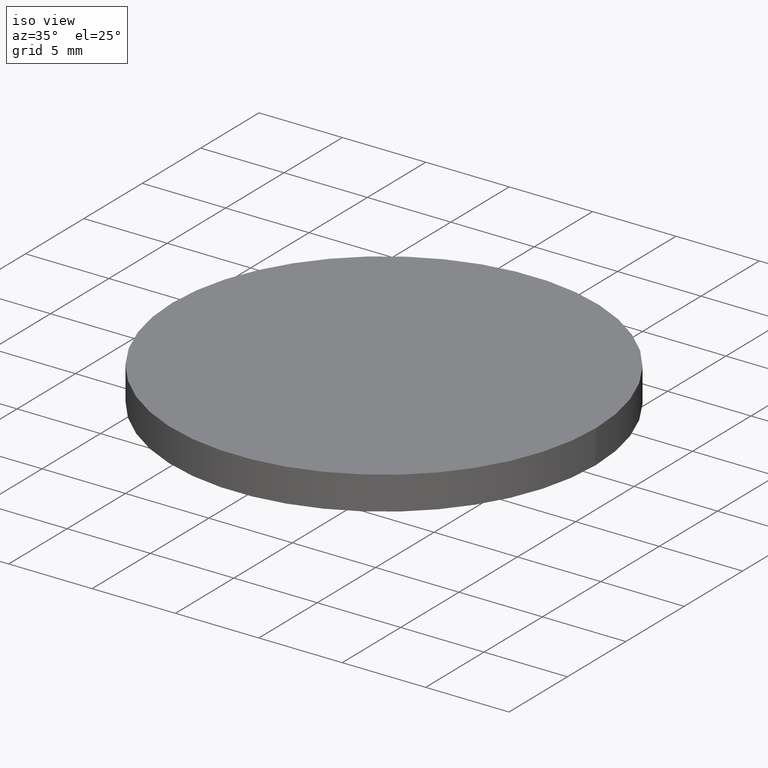
[diagram: clean part render]
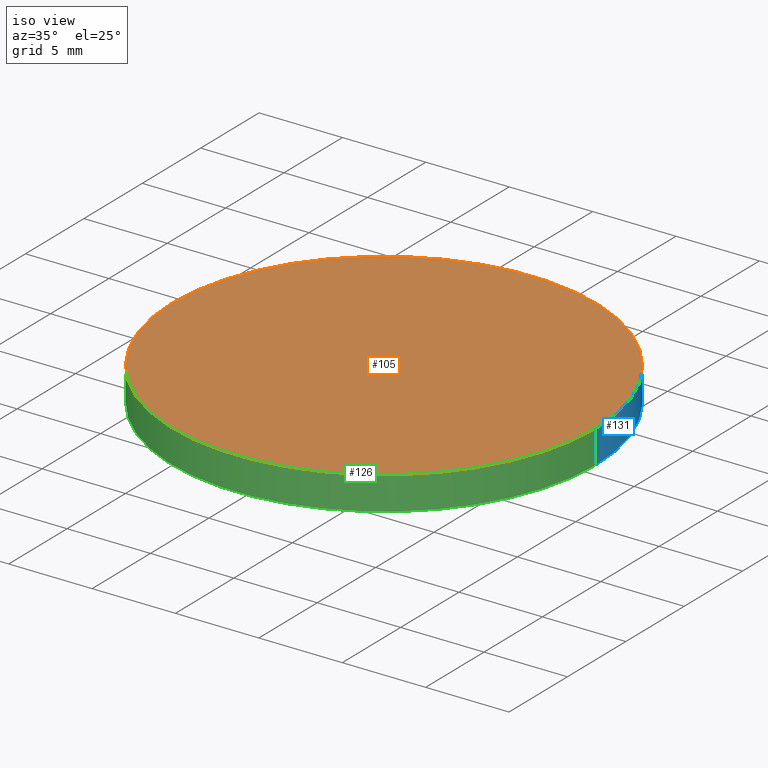
[diagram: same view with three faces highlighted in distinct colors, each labeled with its STEP entity id]
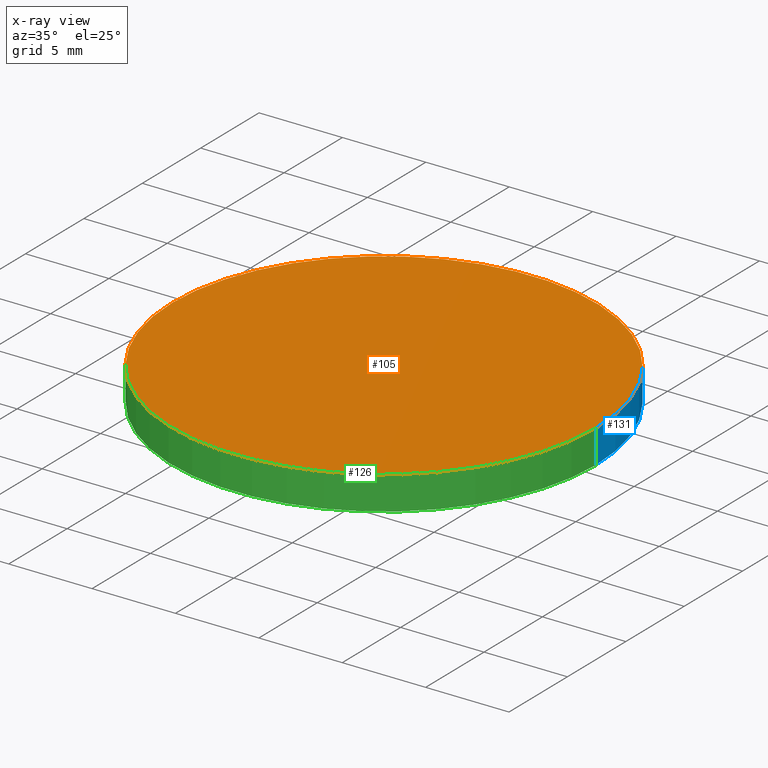
[diagram: x-ray of the same camera — body ghosted, the three highlighted faces saturated]
A machine part, iso view with three faces highlighted in distinct colors.
The next image is the same camera in x-ray (body ghosted, the three faces saturated) — at least one of them is partly hidden behind the body in this view.
Their STEP definitions:

[orange] entity #105 — the highlighted planar face has unit normal (0, 0, 1).
#1 = AXIS2_PLACEMENT_3D ( 'NONE', #58, #69, #83 ) ;
#9 = DIRECTION ( 'NONE',  ( 1.000000000000000000, 0.0000000000000000000, 0.0000000000000000000 ) ) ;
#15 = FACE_OUTER_BOUND ( 'NONE', #76, .T. ) ;
#16 = CARTESIAN_POINT ( 'NONE',  ( 0.0000000000000000000, 0.0000000000000000000, 2.000000000000000000 ) ) ;
#17 = CARTESIAN_POINT ( 'NONE',  ( 12.69999999999999900, 1.555301434917138400E-015, 2.000000000000000000 ) ) ;
#24 = CIRCLE ( 'NONE', #77, 12.69999999999999900 ) ;
#26 = PLANE ( 'NONE',  #1 ) ;
#29 = ORIENTED_EDGE ( 'NONE', *, *, #101, .T. ) ;
#45 = DIRECTION ( 'NONE',  ( 0.0000000000000000000, 0.0000000000000000000, 1.000000000000000000 ) ) ;
#50 = CARTESIAN_POINT ( 'NONE',  ( -12.69999999999999900, 0.0000000000000000000, 2.000000000000000000 ) ) ;
#52 = ORIENTED_EDGE ( 'NONE', *, *, #61, .T. ) ;
#58 = CARTESIAN_POINT ( 'NONE',  ( 0.0000000000000000000, 0.0000000000000000000, 2.000000000000000000 ) ) ;
#61 = EDGE_CURVE ( 'NONE', #80, #66, #104, .T. ) ;
#66 = VERTEX_POINT ( 'NONE', #50 ) ;
#69 = DIRECTION ( 'NONE',  ( 0.0000000000000000000, 0.0000000000000000000, 1.000000000000000000 ) ) ;
#76 = EDGE_LOOP ( 'NONE', ( #29, #52 ) ) ;
#77 = AXIS2_PLACEMENT_3D ( 'NONE', #16, #78, #9 ) ;
#78 = DIRECTION ( 'NONE',  ( 0.0000000000000000000, 0.0000000000000000000, 1.000000000000000000 ) ) ;
#80 = VERTEX_POINT ( 'NONE', #17 ) ;
#83 = DIRECTION ( 'NONE',  ( 1.000000000000000000, 0.0000000000000000000, -0.0000000000000000000 ) ) ;
#92 = AXIS2_PLACEMENT_3D ( 'NONE', #127, #45, #116 ) ;
#101 = EDGE_CURVE ( 'NONE', #66, #80, #24, .T. ) ;
#104 = CIRCLE ( 'NONE', #92, 12.69999999999999900 ) ;
#105 = ADVANCED_FACE ( 'NONE', ( #15 ), #26, .T. ) ;
#116 = DIRECTION ( 'NONE',  ( 1.000000000000000000, 0.0000000000000000000, 0.0000000000000000000 ) ) ;
#127 = CARTESIAN_POINT ( 'NONE',  ( 0.0000000000000000000, 0.0000000000000000000, 2.000000000000000000 ) ) ;

[blue] entity #131 — the highlighted cylindrical surface (partial cylindrical patch) has radius 12.7 mm, axis along (-0, -0, -1).
#7 = ORIENTED_EDGE ( 'NONE', *, *, #51, .T. ) ;
#10 = CARTESIAN_POINT ( 'NONE',  ( -12.69999999999999900, 0.0000000000000000000, 0.0000000000000000000 ) ) ;
#14 = DIRECTION ( 'NONE',  ( -0.0000000000000000000, -0.0000000000000000000, -1.000000000000000000 ) ) ;
#17 = CARTESIAN_POINT ( 'NONE',  ( 12.69999999999999900, 1.555301434917138400E-015, 2.000000000000000000 ) ) ;
#18 = EDGE_CURVE ( 'NONE', #66, #60, #74, .T. ) ;
#19 = DIRECTION ( 'NONE',  ( -1.000000000000000000, 0.0000000000000000000, 0.0000000000000000000 ) ) ;
#23 = VERTEX_POINT ( 'NONE', #70 ) ;
#32 = DIRECTION ( 'NONE',  ( -0.0000000000000000000, -0.0000000000000000000, -1.000000000000000000 ) ) ;
#33 = CYLINDRICAL_SURFACE ( 'NONE', #89, 12.69999999999999900 ) ;
#41 = CIRCLE ( 'NONE', #56, 12.69999999999999900 ) ;
#42 = EDGE_CURVE ( 'NONE', #23, #60, #41, .T. ) ;
#44 = VECTOR ( 'NONE', #32, 1000.000000000000000 ) ;
#45 = DIRECTION ( 'NONE',  ( 0.0000000000000000000, 0.0000000000000000000, 1.000000000000000000 ) ) ;
#50 = CARTESIAN_POINT ( 'NONE',  ( -12.69999999999999900, 0.0000000000000000000, 2.000000000000000000 ) ) ;
#51 = EDGE_CURVE ( 'NONE', #80, #23, #102, .T. ) ;
#54 = ORIENTED_EDGE ( 'NONE', *, *, #18, .F. ) ;
#56 = AXIS2_PLACEMENT_3D ( 'NONE', #137, #59, #128 ) ;
#59 = DIRECTION ( 'NONE',  ( 0.0000000000000000000, 0.0000000000000000000, 1.000000000000000000 ) ) ;
#60 = VERTEX_POINT ( 'NONE', #10 ) ;
#61 = EDGE_CURVE ( 'NONE', #80, #66, #104, .T. ) ;
#66 = VERTEX_POINT ( 'NONE', #50 ) ;
#70 = CARTESIAN_POINT ( 'NONE',  ( 12.69999999999999900, 1.555301434917138400E-015, 0.0000000000000000000 ) ) ;
#74 = LINE ( 'NONE', #97, #44 ) ;
#80 = VERTEX_POINT ( 'NONE', #17 ) ;
#85 = ORIENTED_EDGE ( 'NONE', *, *, #42, .T. ) ;
#89 = AXIS2_PLACEMENT_3D ( 'NONE', #138, #14, #19 ) ;
#92 = AXIS2_PLACEMENT_3D ( 'NONE', #127, #45, #116 ) ;
#96 = DIRECTION ( 'NONE',  ( -0.0000000000000000000, -0.0000000000000000000, -1.000000000000000000 ) ) ;
#97 = CARTESIAN_POINT ( 'NONE',  ( -12.69999999999999900, 0.0000000000000000000, 2.000000000000000000 ) ) ;
#102 = LINE ( 'NONE', #117, #130 ) ;
#104 = CIRCLE ( 'NONE', #92, 12.69999999999999900 ) ;
#110 = EDGE_LOOP ( 'NONE', ( #135, #7, #85, #54 ) ) ;
#115 = FACE_OUTER_BOUND ( 'NONE', #110, .T. ) ;
#116 = DIRECTION ( 'NONE',  ( 1.000000000000000000, 0.0000000000000000000, 0.0000000000000000000 ) ) ;
#117 = CARTESIAN_POINT ( 'NONE',  ( 12.69999999999999900, 1.555301434917138400E-015, 2.000000000000000000 ) ) ;
#127 = CARTESIAN_POINT ( 'NONE',  ( 0.0000000000000000000, 0.0000000000000000000, 2.000000000000000000 ) ) ;
#128 = DIRECTION ( 'NONE',  ( 1.000000000000000000, 0.0000000000000000000, 0.0000000000000000000 ) ) ;
#130 = VECTOR ( 'NONE', #96, 1000.000000000000000 ) ;
#131 = ADVANCED_FACE ( 'NONE', ( #115 ), #33, .T. ) ;
#135 = ORIENTED_EDGE ( 'NONE', *, *, #61, .F. ) ;
#137 = CARTESIAN_POINT ( 'NONE',  ( 0.0000000000000000000, 0.0000000000000000000, 0.0000000000000000000 ) ) ;
#138 = CARTESIAN_POINT ( 'NONE',  ( 0.0000000000000000000, 0.0000000000000000000, 2.000000000000000000 ) ) ;

[green] entity #126 — the highlighted cylindrical surface (partial cylindrical patch) has radius 12.7 mm, axis along (-0, -0, -1).
#9 = DIRECTION ( 'NONE',  ( 1.000000000000000000, 0.0000000000000000000, 0.0000000000000000000 ) ) ;
#10 = CARTESIAN_POINT ( 'NONE',  ( -12.69999999999999900, 0.0000000000000000000, 0.0000000000000000000 ) ) ;
#11 = CARTESIAN_POINT ( 'NONE',  ( 0.0000000000000000000, 0.0000000000000000000, 2.000000000000000000 ) ) ;
#16 = CARTESIAN_POINT ( 'NONE',  ( 0.0000000000000000000, 0.0000000000000000000, 2.000000000000000000 ) ) ;
#17 = CARTESIAN_POINT ( 'NONE',  ( 12.69999999999999900, 1.555301434917138400E-015, 2.000000000000000000 ) ) ;
#18 = EDGE_CURVE ( 'NONE', #66, #60, #74, .T. ) ;
#22 = AXIS2_PLACEMENT_3D ( 'NONE', #11, #120, #129 ) ;
#23 = VERTEX_POINT ( 'NONE', #70 ) ;
#24 = CIRCLE ( 'NONE', #77, 12.69999999999999900 ) ;
#27 = DIRECTION ( 'NONE',  ( 0.0000000000000000000, 0.0000000000000000000, 1.000000000000000000 ) ) ;
#30 = CIRCLE ( 'NONE', #88, 12.69999999999999900 ) ;
#32 = DIRECTION ( 'NONE',  ( -0.0000000000000000000, -0.0000000000000000000, -1.000000000000000000 ) ) ;
#43 = EDGE_CURVE ( 'NONE', #60, #23, #30, .T. ) ;
#44 = VECTOR ( 'NONE', #32, 1000.000000000000000 ) ;
#47 = ORIENTED_EDGE ( 'NONE', *, *, #18, .T. ) ;
#50 = CARTESIAN_POINT ( 'NONE',  ( -12.69999999999999900, 0.0000000000000000000, 2.000000000000000000 ) ) ;
#51 = EDGE_CURVE ( 'NONE', #80, #23, #102, .T. ) ;
#60 = VERTEX_POINT ( 'NONE', #10 ) ;
#62 = FACE_OUTER_BOUND ( 'NONE', #114, .T. ) ;
#65 = CYLINDRICAL_SURFACE ( 'NONE', #22, 12.69999999999999900 ) ;
#66 = VERTEX_POINT ( 'NONE', #50 ) ;
#70 = CARTESIAN_POINT ( 'NONE',  ( 12.69999999999999900, 1.555301434917138400E-015, 0.0000000000000000000 ) ) ;
#74 = LINE ( 'NONE', #97, #44 ) ;
#77 = AXIS2_PLACEMENT_3D ( 'NONE', #16, #78, #9 ) ;
#78 = DIRECTION ( 'NONE',  ( 0.0000000000000000000, 0.0000000000000000000, 1.000000000000000000 ) ) ;
#80 = VERTEX_POINT ( 'NONE', #17 ) ;
#88 = AXIS2_PLACEMENT_3D ( 'NONE', #106, #27, #95 ) ;
#90 = ORIENTED_EDGE ( 'NONE', *, *, #43, .T. ) ;
#95 = DIRECTION ( 'NONE',  ( 1.000000000000000000, 0.0000000000000000000, 0.0000000000000000000 ) ) ;
#96 = DIRECTION ( 'NONE',  ( -0.0000000000000000000, -0.0000000000000000000, -1.000000000000000000 ) ) ;
#97 = CARTESIAN_POINT ( 'NONE',  ( -12.69999999999999900, 0.0000000000000000000, 2.000000000000000000 ) ) ;
#101 = EDGE_CURVE ( 'NONE', #66, #80, #24, .T. ) ;
#102 = LINE ( 'NONE', #117, #130 ) ;
#106 = CARTESIAN_POINT ( 'NONE',  ( 0.0000000000000000000, 0.0000000000000000000, 0.0000000000000000000 ) ) ;
#114 = EDGE_LOOP ( 'NONE', ( #125, #124, #47, #90 ) ) ;
#117 = CARTESIAN_POINT ( 'NONE',  ( 12.69999999999999900, 1.555301434917138400E-015, 2.000000000000000000 ) ) ;
#120 = DIRECTION ( 'NONE',  ( -0.0000000000000000000, -0.0000000000000000000, -1.000000000000000000 ) ) ;
#124 = ORIENTED_EDGE ( 'NONE', *, *, #101, .F. ) ;
#125 = ORIENTED_EDGE ( 'NONE', *, *, #51, .F. ) ;
#126 = ADVANCED_FACE ( 'NONE', ( #62 ), #65, .T. ) ;
#129 = DIRECTION ( 'NONE',  ( -1.000000000000000000, 0.0000000000000000000, 0.0000000000000000000 ) ) ;
#130 = VECTOR ( 'NONE', #96, 1000.000000000000000 ) ;